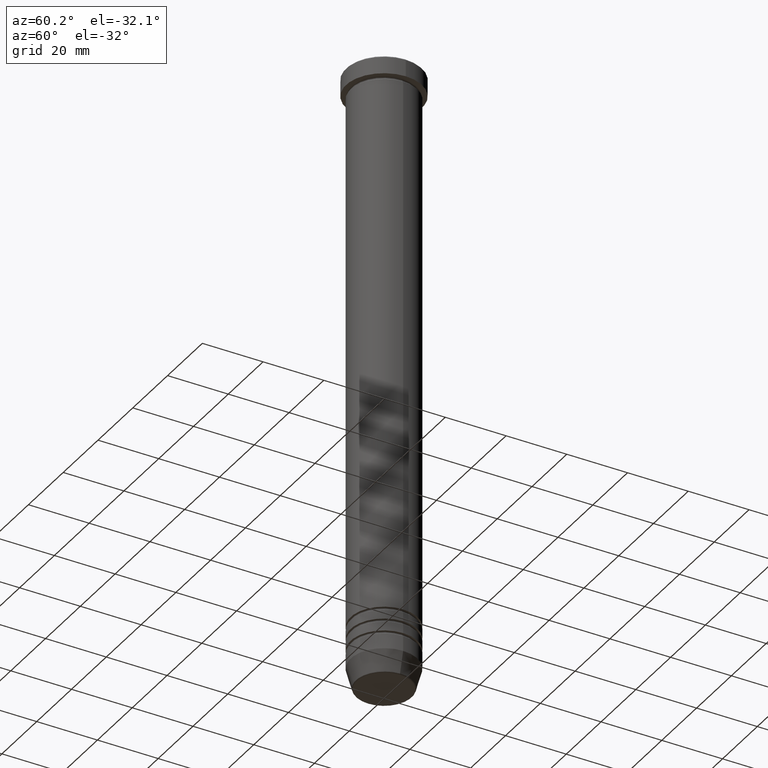
[diagram: clean part render]
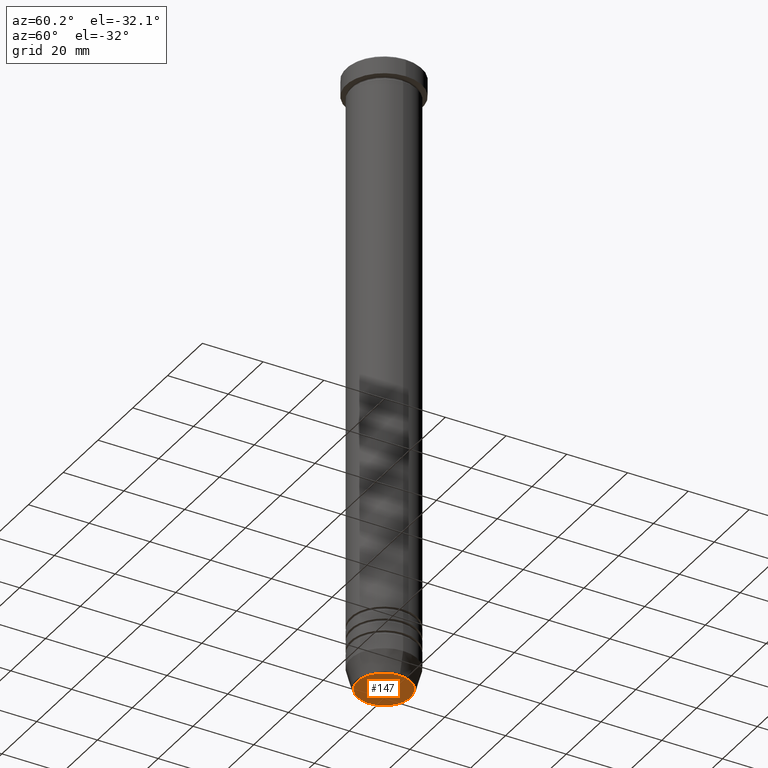
[diagram: same view with one face highlighted and labeled with its STEP entity id]
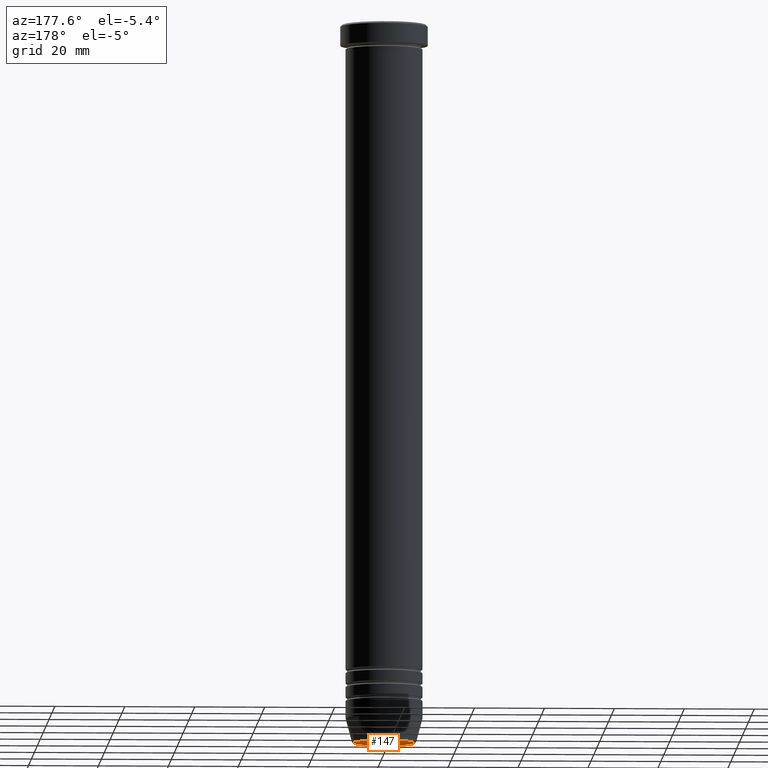
[diagram: same view with one face highlighted and labeled with its STEP entity id]
A machine part, auxiliary view. The second image highlights one B-rep face of the part: STEP entity #147.
A second angle (auxiliary view) of the same face is appended — the face is thin or edge-on in the first view.
In plain terms, the highlighted planar face has unit normal (0, -0, 1).
Its self-contained STEP definition (entity closure, byte-faithful):
#10 = CIRCLE ( 'NONE', #803, 8.740692158992663607 ) ;
#21 = DIRECTION ( 'NONE',  ( 1.000000000000000000, 0.000000000000000000, 0.000000000000000000 ) ) ;
#29 = VERTEX_POINT ( 'NONE', #244 ) ;
#103 = CIRCLE ( 'NONE', #315, 8.740692158992663607 ) ;
#147 = ADVANCED_FACE ( 'NONE', ( #276 ), #987, .F. ) ;
#156 = CARTESIAN_POINT ( 'NONE',  ( 0.000000000000000000, 0.000000000000000000, -206.0000000000000284 ) ) ;
#186 = EDGE_LOOP ( 'NONE', ( #878, #333 ) ) ;
#195 = CARTESIAN_POINT ( 'NONE',  ( 8.740692158992663607, 0.000000000000000000, -206.0000000000000284 ) ) ;
#244 = CARTESIAN_POINT ( 'NONE',  ( -8.740692158992663607, 1.099999016768740442E-15, -206.0000000000000284 ) ) ;
#276 = FACE_OUTER_BOUND ( 'NONE', #186, .T. ) ;
#315 = AXIS2_PLACEMENT_3D ( 'NONE', #156, #406, #940 ) ;
#320 = DIRECTION ( 'NONE',  ( 0.000000000000000000, 0.000000000000000000, -1.000000000000000000 ) ) ;
#324 = CARTESIAN_POINT ( 'NONE',  ( 0.000000000000000000, 0.000000000000000000, -206.0000000000000284 ) ) ;
#333 = ORIENTED_EDGE ( 'NONE', *, *, #780, .T. ) ;
#406 = DIRECTION ( 'NONE',  ( 0.000000000000000000, 0.000000000000000000, -1.000000000000000000 ) ) ;
#448 = CARTESIAN_POINT ( 'NONE',  ( 0.000000000000000000, 1.794107560750872760E-14, -206.0000000000000284 ) ) ;
#546 = VERTEX_POINT ( 'NONE', #195 ) ;
#669 = DIRECTION ( 'NONE',  ( 1.000000000000000000, 0.000000000000000000, 0.000000000000000000 ) ) ;
#692 = AXIS2_PLACEMENT_3D ( 'NONE', #448, #811, #21 ) ;
#780 = EDGE_CURVE ( 'NONE', #29, #546, #10, .T. ) ;
#800 = EDGE_CURVE ( 'NONE', #546, #29, #103, .T. ) ;
#803 = AXIS2_PLACEMENT_3D ( 'NONE', #324, #320, #669 ) ;
#811 = DIRECTION ( 'NONE',  ( 0.000000000000000000, -0.000000000000000000, 1.000000000000000000 ) ) ;
#878 = ORIENTED_EDGE ( 'NONE', *, *, #800, .T. ) ;
#940 = DIRECTION ( 'NONE',  ( 1.000000000000000000, 0.000000000000000000, 0.000000000000000000 ) ) ;
#987 = PLANE ( 'NONE',  #692 ) ;